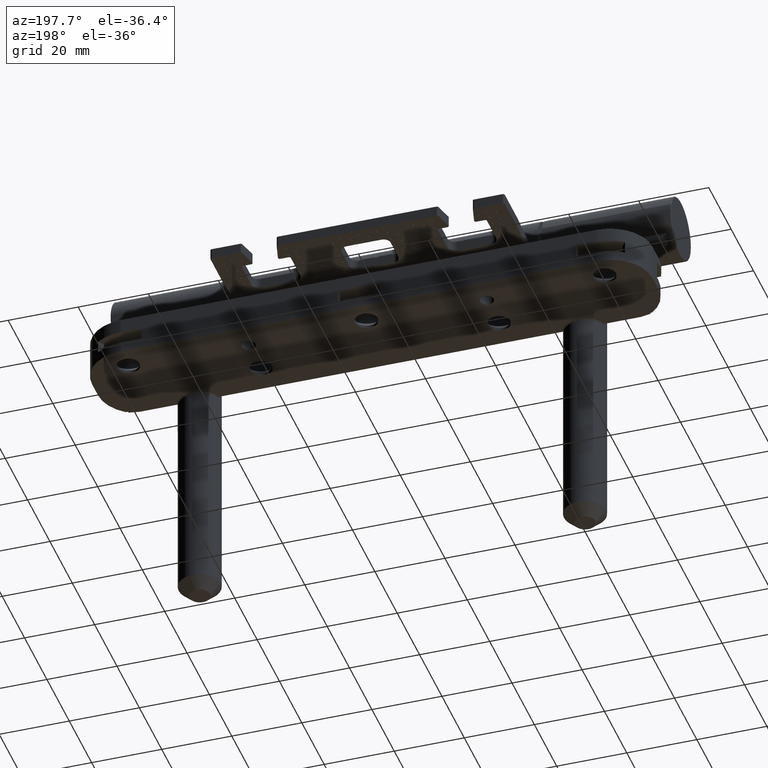
[diagram: clean part render]
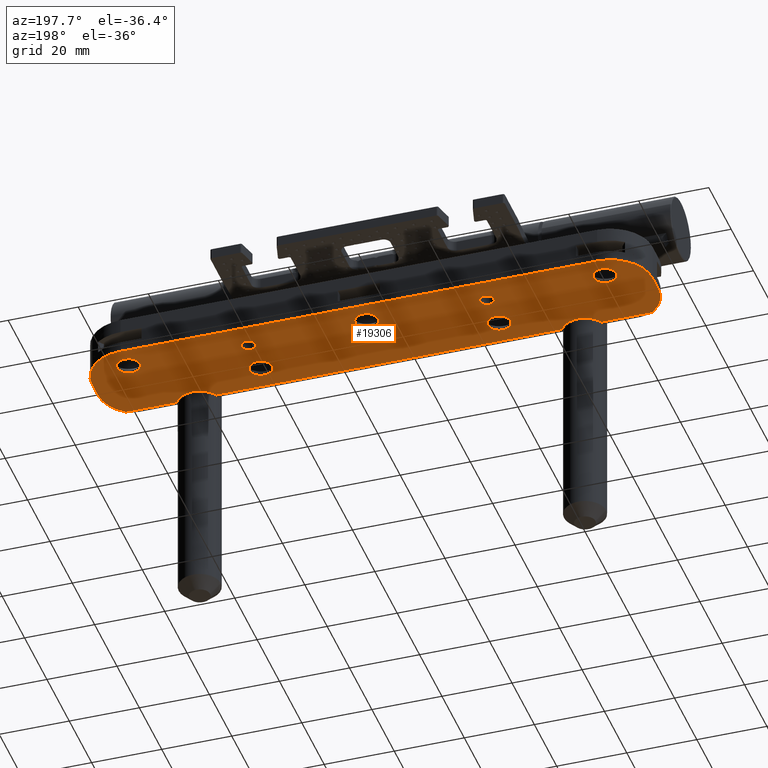
[diagram: same view with one face highlighted and labeled with its STEP entity id]
A machine part, auxiliary view. The second image highlights one B-rep face of the part: STEP entity #19306.
In plain terms, the highlighted planar face has unit normal (-0, 0, -1).
Its self-contained STEP definition (entity closure, byte-faithful):
#16 = CIRCLE ( 'NONE', #24866, 11.99999999999999645 ) ;
#91 = DIRECTION ( 'NONE',  ( 1.000000000000000000, 0.000000000000000000, 0.000000000000000000 ) ) ;
#528 = AXIS2_PLACEMENT_3D ( 'NONE', #54129, #11347, #28052 ) ;
#893 = DIRECTION ( 'NONE',  ( -6.661338147750895855E-16, -1.000000000000000000, 4.190823558986625216E-31 ) ) ;
#1560 = EDGE_CURVE ( 'NONE', #5891, #54876, #36880, .T. ) ;
#2489 = VERTEX_POINT ( 'NONE', #34988 ) ;
#2493 = DIRECTION ( 'NONE',  ( 1.000000000000000000, 6.661338147750896841E-16, -1.224646799147351975E-16 ) ) ;
#3040 = AXIS2_PLACEMENT_3D ( 'NONE', #30078, #18114, #91 ) ;
#3041 = CARTESIAN_POINT ( 'NONE',  ( -7.000000000000040856, -68.00000000000000000, 0.000000000000000000 ) ) ;
#3295 = CARTESIAN_POINT ( 'NONE',  ( -6.999999999999999112, 0.000000000000000000, 0.000000000000000000 ) ) ;
#3655 = FACE_BOUND ( 'NONE', #38277, .T. ) ;
#4010 = ORIENTED_EDGE ( 'NONE', *, *, #30425, .T. ) ;
#4615 = ORIENTED_EDGE ( 'NONE', *, *, #27919, .T. ) ;
#4652 = ORIENTED_EDGE ( 'NONE', *, *, #26941, .T. ) ;
#4987 = DIRECTION ( 'NONE',  ( 9.860761315262651947E-32, -4.221638438096822742E-31, 1.000000000000000000 ) ) ;
#5378 = AXIS2_PLACEMENT_3D ( 'NONE', #35793, #4987, #26920 ) ;
#5382 = EDGE_CURVE ( 'NONE', #42048, #10836, #11360, .T. ) ;
#5447 = VERTEX_POINT ( 'NONE', #50522 ) ;
#5800 = AXIS2_PLACEMENT_3D ( 'NONE', #10701, #7377, #28216 ) ;
#5891 = VERTEX_POINT ( 'NONE', #24102 ) ;
#6208 = CARTESIAN_POINT ( 'NONE',  ( -10.00000000000000355, -34.00000000000000000, 1.972152263052530389E-31 ) ) ;
#6307 = CARTESIAN_POINT ( 'NONE',  ( -26.99899999999990641, 80.00000000000000000, 3.469446951953614189E-15 ) ) ;
#6582 = LINE ( 'NONE', #23534, #28075 ) ;
#6719 = VERTEX_POINT ( 'NONE', #13852 ) ;
#6832 = DIRECTION ( 'NONE',  ( -1.000000000000000000, -1.156482317317872119E-15, 1.224646799147351975E-16 ) ) ;
#6857 = EDGE_CURVE ( 'NONE', #46029, #19776, #16, .T. ) ;
#7067 = CIRCLE ( 'NONE', #45205, 11.99999999999999645 ) ;
#7234 = VECTOR ( 'NONE', #12218, 1000.000000000000000 ) ;
#7377 = DIRECTION ( 'NONE',  ( 9.860761315262651947E-32, -4.221638438096822742E-31, 1.000000000000000000 ) ) ;
#7846 = VERTEX_POINT ( 'NONE', #32847 ) ;
#7985 = DIRECTION ( 'NONE',  ( -1.000000000000000000, -2.312964634635743450E-15, 1.224646799147351728E-16 ) ) ;
#8024 = AXIS2_PLACEMENT_3D ( 'NONE', #14511, #22304, #18934 ) ;
#8668 = EDGE_CURVE ( 'NONE', #34007, #14679, #10754, .T. ) ;
#9161 = CARTESIAN_POINT ( 'NONE',  ( -11.99999999999994849, 80.00000000000001421, 0.000000000000000000 ) ) ;
#9961 = CARTESIAN_POINT ( 'NONE',  ( -8.000000000000003553, -34.00000000000000000, 0.000000000000000000 ) ) ;
#10220 = CIRCLE ( 'NONE', #22661, 1.999999999999999112 ) ;
#10654 = AXIS2_PLACEMENT_3D ( 'NONE', #46100, #29425, #38026 ) ;
#10694 = DIRECTION ( 'NONE',  ( 1.000000000000000000, 0.000000000000000000, 0.000000000000000000 ) ) ;
#10701 = CARTESIAN_POINT ( 'NONE',  ( -18.99999999999995381, 34.00000000000000000, 0.000000000000000000 ) ) ;
#10754 = CIRCLE ( 'NONE', #21411, 11.99999999999999289 ) ;
#10836 = VERTEX_POINT ( 'NONE', #9161 ) ;
#11347 = DIRECTION ( 'NONE',  ( 9.860761315262651947E-32, -4.221638438096822742E-31, 1.000000000000000000 ) ) ;
#11360 = LINE ( 'NONE', #28065, #18509 ) ;
#11580 = DIRECTION ( 'NONE',  ( 1.224646799147353947E-16, -3.374229262566438528E-31, 1.000000000000000000 ) ) ;
#11623 = VERTEX_POINT ( 'NONE', #27886 ) ;
#11653 = DIRECTION ( 'NONE',  ( 9.860761315262651947E-32, -4.221638438096822742E-31, 1.000000000000000000 ) ) ;
#11894 = VERTEX_POINT ( 'NONE', #53554 ) ;
#11973 = FACE_BOUND ( 'NONE', #30640, .T. ) ;
#12218 = DIRECTION ( 'NONE',  ( 6.661338147750895855E-16, 1.000000000000000000, -4.190823558986625216E-31 ) ) ;
#12348 = CARTESIAN_POINT ( 'NONE',  ( -6.000000000000004441, -34.00000000000000000, 1.972152263052529514E-31 ) ) ;
#12916 = CIRCLE ( 'NONE', #528, 1.999999999999999112 ) ;
#13511 = CARTESIAN_POINT ( 'NONE',  ( -26.99900000000003075, -74.50000000000001421, 3.469446951953614189E-15 ) ) ;
#13657 = LINE ( 'NONE', #47821, #47130 ) ;
#13852 = CARTESIAN_POINT ( 'NONE',  ( -3.749999999999938272, 68.00000000000000000, -1.734723475976807094E-14 ) ) ;
#13918 = ORIENTED_EDGE ( 'NONE', *, *, #6857, .F. ) ;
#14256 = CIRCLE ( 'NONE', #5378, 3.249999999999999556 ) ;
#14359 = LINE ( 'NONE', #6307, #43764 ) ;
#14511 = CARTESIAN_POINT ( 'NONE',  ( -7.000000000000040856, -68.00000000000000000, 0.000000000000000000 ) ) ;
#14619 = VERTEX_POINT ( 'NONE', #15202 ) ;
#14679 = VERTEX_POINT ( 'NONE', #18804 ) ;
#14991 = ORIENTED_EDGE ( 'NONE', *, *, #28636, .T. ) ;
#15148 = CARTESIAN_POINT ( 'NONE',  ( -7.999999999999958256, 34.00000000000000000, -1.734723475976807094E-14 ) ) ;
#15202 = CARTESIAN_POINT ( 'NONE',  ( -3.750000000000042188, -68.00000000000000000, 3.204747427460360459E-31 ) ) ;
#15461 = AXIS2_PLACEMENT_3D ( 'NONE', #40220, #45207, #19088 ) ;
#15464 = DIRECTION ( 'NONE',  ( -1.000000000000000000, -1.156482317317871725E-15, 1.224646799147351728E-16 ) ) ;
#15712 = CIRCLE ( 'NONE', #24617, 1.999999999999999112 ) ;
#15810 = DIRECTION ( 'NONE',  ( 9.860761315262651947E-32, -4.221638438096822742E-31, 1.000000000000000000 ) ) ;
#16099 = DIRECTION ( 'NONE',  ( 9.860761315262651947E-32, -4.221638438096822742E-31, 1.000000000000000000 ) ) ;
#16187 = EDGE_CURVE ( 'NONE', #24594, #21484, #10220, .T. ) ;
#16896 = ORIENTED_EDGE ( 'NONE', *, *, #47046, .T. ) ;
#17036 = ORIENTED_EDGE ( 'NONE', *, *, #34119, .T. ) ;
#17248 = ORIENTED_EDGE ( 'NONE', *, *, #29407, .T. ) ;
#17568 = ORIENTED_EDGE ( 'NONE', *, *, #1560, .T. ) ;
#17691 = DIRECTION ( 'NONE',  ( 1.000000000000000000, 0.000000000000000000, 9.860761315262647568E-32 ) ) ;
#17920 = DIRECTION ( 'NONE',  ( 9.860761315262651947E-32, -4.221638438096822742E-31, 1.000000000000000000 ) ) ;
#17955 = ORIENTED_EDGE ( 'NONE', *, *, #41127, .T. ) ;
#17958 = CARTESIAN_POINT ( 'NONE',  ( -18.99999999999998934, -34.00000000000000000, 0.000000000000000000 ) ) ;
#18114 = DIRECTION ( 'NONE',  ( 9.860761315262651947E-32, -4.221638438096822742E-31, 1.000000000000000000 ) ) ;
#18157 = CARTESIAN_POINT ( 'NONE',  ( -10.24999999999999822, -1.766924688296161684E-15, 3.204747427460354329E-31 ) ) ;
#18473 = ORIENTED_EDGE ( 'NONE', *, *, #52033, .T. ) ;
#18509 = VECTOR ( 'NONE', #2493, 1000.000000000000000 ) ;
#18713 = ORIENTED_EDGE ( 'NONE', *, *, #44593, .T. ) ;
#18804 = CARTESIAN_POINT ( 'NONE',  ( -4.163336342344337027E-14, -68.00000000000000000, 3.469446951953614189E-15 ) ) ;
#18934 = DIRECTION ( 'NONE',  ( 1.000000000000000000, 0.000000000000000000, 9.860761315262651947E-32 ) ) ;
#19088 = DIRECTION ( 'NONE',  ( -1.000000000000000000, -1.156482317317872119E-15, 1.224646799147351975E-16 ) ) ;
#19306 = ADVANCED_FACE ( 'NONE', ( #33101, #11973, #46165, #25067, #28953, #3655, #20592, #41996 ), #20873, .T. ) ;
#19361 = ORIENTED_EDGE ( 'NONE', *, *, #52343, .T. ) ;
#19776 = VERTEX_POINT ( 'NONE', #48271 ) ;
#20592 = FACE_BOUND ( 'NONE', #42997, .T. ) ;
#20865 = CIRCLE ( 'NONE', #5800, 3.249999999999999556 ) ;
#20873 = PLANE ( 'NONE',  #29159 ) ;
#21300 = ORIENTED_EDGE ( 'NONE', *, *, #16187, .T. ) ;
#21411 = AXIS2_PLACEMENT_3D ( 'NONE', #35438, #27956, #6832 ) ;
#21484 = VERTEX_POINT ( 'NONE', #6208 ) ;
#21947 = DIRECTION ( 'NONE',  ( 9.860761315262651947E-32, -4.221638438096822742E-31, 1.000000000000000000 ) ) ;
#22212 = CIRCLE ( 'NONE', #10654, 3.249999999999998668 ) ;
#22304 = DIRECTION ( 'NONE',  ( 9.860761315262651947E-32, -4.221638438096822742E-31, 1.000000000000000000 ) ) ;
#22340 = ORIENTED_EDGE ( 'NONE', *, *, #34772, .T. ) ;
#22661 = AXIS2_PLACEMENT_3D ( 'NONE', #9961, #21947, #43869 ) ;
#23243 = EDGE_CURVE ( 'NONE', #5447, #7846, #20865, .T. ) ;
#23534 = CARTESIAN_POINT ( 'NONE',  ( -26.99899999999996680, -4.163336342344337027E-14, 3.469446951953614189E-15 ) ) ;
#23755 = CARTESIAN_POINT ( 'NONE',  ( -5.999999999999959144, 34.00000000000000000, -1.734723475976807094E-14 ) ) ;
#23879 = CIRCLE ( 'NONE', #34476, 3.249999999999998668 ) ;
#24102 = CARTESIAN_POINT ( 'NONE',  ( -22.24999999999998934, -34.00000000000000000, 8.666684749742550829E-31 ) ) ;
#24594 = VERTEX_POINT ( 'NONE', #12348 ) ;
#24617 = AXIS2_PLACEMENT_3D ( 'NONE', #15148, #45696, #10694 ) ;
#24802 = VECTOR ( 'NONE', #42680, 1000.000000000000000 ) ;
#24866 = AXIS2_PLACEMENT_3D ( 'NONE', #36063, #11580, #7985 ) ;
#24893 = CIRCLE ( 'NONE', #8024, 3.249999999999998668 ) ;
#25067 = FACE_OUTER_BOUND ( 'NONE', #43112, .T. ) ;
#25753 = LINE ( 'NONE', #34064, #24802 ) ;
#25779 = DIRECTION ( 'NONE',  ( 9.860761315262651947E-32, -4.221638438096822742E-31, 1.000000000000000000 ) ) ;
#26159 = CARTESIAN_POINT ( 'NONE',  ( 6.245004513516505540E-14, 80.00000000000000000, 0.000000000000000000 ) ) ;
#26585 = CARTESIAN_POINT ( 'NONE',  ( -17.35676528651905315, 80.00000000000001421, 0.000000000000000000 ) ) ;
#26727 = EDGE_CURVE ( 'NONE', #32917, #6719, #29657, .T. ) ;
#26920 = DIRECTION ( 'NONE',  ( 1.000000000000000000, 0.000000000000000000, 9.860761315262647568E-32 ) ) ;
#26941 = EDGE_CURVE ( 'NONE', #6719, #32917, #53633, .T. ) ;
#27132 = EDGE_LOOP ( 'NONE', ( #49968, #17568 ) ) ;
#27275 = CARTESIAN_POINT ( 'NONE',  ( -9.999999999999959144, 34.00000000000000000, -1.734723475976807094E-14 ) ) ;
#27886 = CARTESIAN_POINT ( 'NONE',  ( 6.245004513516505540E-14, 68.00000000000000000, 0.000000000000000000 ) ) ;
#27919 = EDGE_CURVE ( 'NONE', #46029, #42171, #6582, .T. ) ;
#27956 = DIRECTION ( 'NONE',  ( 1.224646799147353947E-16, -3.374229262566438528E-31, 1.000000000000000000 ) ) ;
#28052 = DIRECTION ( 'NONE',  ( 1.000000000000000000, 0.000000000000000000, 9.860761315262651947E-32 ) ) ;
#28065 = CARTESIAN_POINT ( 'NONE',  ( 6.245004513516505540E-14, 80.00000000000000000, 0.000000000000000000 ) ) ;
#28066 = DIRECTION ( 'NONE',  ( 1.000000000000000000, 0.000000000000000000, 9.860761315262651947E-32 ) ) ;
#28075 = VECTOR ( 'NONE', #40462, 1000.000000000000000 ) ;
#28216 = DIRECTION ( 'NONE',  ( 1.000000000000000000, 0.000000000000000000, 9.860761315262647568E-32 ) ) ;
#28636 = EDGE_CURVE ( 'NONE', #21484, #24594, #12916, .T. ) ;
#28876 = DIRECTION ( 'NONE',  ( 1.000000000000000000, 6.661338147750895855E-16, 9.860761315262651947E-32 ) ) ;
#28953 = FACE_BOUND ( 'NONE', #33007, .T. ) ;
#29159 = AXIS2_PLACEMENT_3D ( 'NONE', #26159, #43624, #51674 ) ;
#29407 = EDGE_CURVE ( 'NONE', #29607, #52183, #41365, .T. ) ;
#29425 = DIRECTION ( 'NONE',  ( 9.860761315262651947E-32, -4.221638438096822742E-31, 1.000000000000000000 ) ) ;
#29607 = VERTEX_POINT ( 'NONE', #23755 ) ;
#29657 = CIRCLE ( 'NONE', #3040, 3.249999999999998668 ) ;
#30078 = CARTESIAN_POINT ( 'NONE',  ( -6.999999999999936939, 68.00000000000000000, -1.734723475976807094E-14 ) ) ;
#30425 = EDGE_CURVE ( 'NONE', #52183, #29607, #15712, .T. ) ;
#30640 = EDGE_LOOP ( 'NONE', ( #45535, #34033 ) ) ;
#31270 = EDGE_CURVE ( 'NONE', #7846, #5447, #43273, .T. ) ;
#31683 = CIRCLE ( 'NONE', #42318, 3.249999999999998668 ) ;
#32396 = CARTESIAN_POINT ( 'NONE',  ( -17.35676528651907446, 68.00000000000001421, 0.000000000000000000 ) ) ;
#32806 = DIRECTION ( 'NONE',  ( 1.000000000000000000, 0.000000000000000000, 0.000000000000000000 ) ) ;
#32847 = CARTESIAN_POINT ( 'NONE',  ( -22.24999999999995381, 34.00000000000000000, 8.666684749742571848E-31 ) ) ;
#32874 = ORIENTED_EDGE ( 'NONE', *, *, #47589, .F. ) ;
#32917 = VERTEX_POINT ( 'NONE', #52379 ) ;
#33007 = EDGE_LOOP ( 'NONE', ( #21300, #14991 ) ) ;
#33071 = ORIENTED_EDGE ( 'NONE', *, *, #36425, .T. ) ;
#33101 = FACE_BOUND ( 'NONE', #50937, .T. ) ;
#34007 = VERTEX_POINT ( 'NONE', #50160 ) ;
#34033 = ORIENTED_EDGE ( 'NONE', *, *, #31270, .T. ) ;
#34064 = CARTESIAN_POINT ( 'NONE',  ( -4.163336342344337027E-14, -80.00000000000001421, 0.000000000000000000 ) ) ;
#34119 = EDGE_CURVE ( 'NONE', #35796, #42048, #7067, .T. ) ;
#34143 = CARTESIAN_POINT ( 'NONE',  ( -18.99999999999995381, 34.00000000000000000, 0.000000000000000000 ) ) ;
#34476 = AXIS2_PLACEMENT_3D ( 'NONE', #3041, #16099, #28066 ) ;
#34772 = EDGE_CURVE ( 'NONE', #2489, #14619, #24893, .T. ) ;
#34988 = CARTESIAN_POINT ( 'NONE',  ( -10.25000000000004086, -68.00000000000000000, 3.204747427460361773E-31 ) ) ;
#35136 = AXIS2_PLACEMENT_3D ( 'NONE', #43214, #17920, #35143 ) ;
#35143 = DIRECTION ( 'NONE',  ( 1.000000000000000000, 0.000000000000000000, 0.000000000000000000 ) ) ;
#35204 = CARTESIAN_POINT ( 'NONE',  ( -15.74999999999998934, -34.00000000000000000, 3.204747427460360022E-31 ) ) ;
#35438 = CARTESIAN_POINT ( 'NONE',  ( -12.00000000000003553, -67.99999999999997158, 3.469446951953614189E-15 ) ) ;
#35618 = CARTESIAN_POINT ( 'NONE',  ( -26.99899999999992417, 75.14334023620217806, 3.469446951953614189E-15 ) ) ;
#35793 = CARTESIAN_POINT ( 'NONE',  ( -18.99999999999998934, -34.00000000000000000, 0.000000000000000000 ) ) ;
#35796 = VERTEX_POINT ( 'NONE', #35618 ) ;
#36063 = CARTESIAN_POINT ( 'NONE',  ( -17.35676528651918105, -67.99999999999997158, 0.000000000000000000 ) ) ;
#36425 = EDGE_CURVE ( 'NONE', #40422, #50795, #22212, .T. ) ;
#36880 = CIRCLE ( 'NONE', #51076, 3.249999999999999556 ) ;
#37246 = CARTESIAN_POINT ( 'NONE',  ( -6.999999999999936939, 68.00000000000000000, -1.734723475976807094E-14 ) ) ;
#38026 = DIRECTION ( 'NONE',  ( 1.000000000000000000, 6.661338147750895855E-16, 9.860761315262651947E-32 ) ) ;
#38277 = EDGE_LOOP ( 'NONE', ( #17248, #4010 ) ) ;
#40220 = CARTESIAN_POINT ( 'NONE',  ( -11.99999999999993072, 68.00000000000001421, 0.000000000000000000 ) ) ;
#40422 = VERTEX_POINT ( 'NONE', #43729 ) ;
#40462 = DIRECTION ( 'NONE',  ( 6.661338147750895855E-16, 1.000000000000000000, -4.190823558986625216E-31 ) ) ;
#41127 = EDGE_CURVE ( 'NONE', #10836, #11623, #44736, .T. ) ;
#41365 = CIRCLE ( 'NONE', #35136, 1.999999999999999112 ) ;
#41996 = FACE_BOUND ( 'NONE', #27132, .T. ) ;
#42048 = VERTEX_POINT ( 'NONE', #26585 ) ;
#42171 = VERTEX_POINT ( 'NONE', #13511 ) ;
#42318 = AXIS2_PLACEMENT_3D ( 'NONE', #3295, #15810, #28876 ) ;
#42680 = DIRECTION ( 'NONE',  ( 1.000000000000000000, 6.661338147750896841E-16, -1.224646799147351975E-16 ) ) ;
#42890 = ORIENTED_EDGE ( 'NONE', *, *, #5382, .T. ) ;
#42997 = EDGE_LOOP ( 'NONE', ( #16896, #22340 ) ) ;
#43112 = EDGE_LOOP ( 'NONE', ( #13918, #4615, #54894, #19361, #17036, #42890, #17955, #18473, #53297, #32874 ) ) ;
#43214 = CARTESIAN_POINT ( 'NONE',  ( -7.999999999999958256, 34.00000000000000000, -1.734723475976807094E-14 ) ) ;
#43273 = CIRCLE ( 'NONE', #50360, 3.249999999999999556 ) ;
#43624 = DIRECTION ( 'NONE',  ( -1.224646799147351975E-16, 3.374229262566441156E-31, -1.000000000000000000 ) ) ;
#43729 = CARTESIAN_POINT ( 'NONE',  ( -3.750000000000000888, 2.164934898019040265E-15, 3.204747427460360459E-31 ) ) ;
#43764 = VECTOR ( 'NONE', #48800, 1000.000000000000000 ) ;
#43869 = DIRECTION ( 'NONE',  ( 1.000000000000000000, 0.000000000000000000, 9.860761315262651947E-32 ) ) ;
#44593 = EDGE_CURVE ( 'NONE', #50795, #40422, #31683, .T. ) ;
#44736 = CIRCLE ( 'NONE', #15461, 11.99999999999999289 ) ;
#45205 = AXIS2_PLACEMENT_3D ( 'NONE', #32396, #53498, #15464 ) ;
#45207 = DIRECTION ( 'NONE',  ( -1.224646799147353947E-16, 3.374229262566438528E-31, -1.000000000000000000 ) ) ;
#45535 = ORIENTED_EDGE ( 'NONE', *, *, #23243, .T. ) ;
#45565 = DIRECTION ( 'NONE',  ( 1.000000000000000000, 0.000000000000000000, 9.860761315262647568E-32 ) ) ;
#45574 = LINE ( 'NONE', #54169, #7234 ) ;
#45696 = DIRECTION ( 'NONE',  ( 9.860761315262651947E-32, -4.221638438096822742E-31, 1.000000000000000000 ) ) ;
#46029 = VERTEX_POINT ( 'NONE', #47517 ) ;
#46100 = CARTESIAN_POINT ( 'NONE',  ( -6.999999999999999112, 0.000000000000000000, 0.000000000000000000 ) ) ;
#46165 = FACE_BOUND ( 'NONE', #49775, .T. ) ;
#47046 = EDGE_CURVE ( 'NONE', #14619, #2489, #23879, .T. ) ;
#47130 = VECTOR ( 'NONE', #893, 1000.000000000000000 ) ;
#47517 = CARTESIAN_POINT ( 'NONE',  ( -26.99900000000003075, -75.14334023620217806, 3.469446951953614189E-15 ) ) ;
#47589 = EDGE_CURVE ( 'NONE', #19776, #34007, #25753, .T. ) ;
#47821 = CARTESIAN_POINT ( 'NONE',  ( 6.245004513516505540E-14, 80.00000000000000000, 0.000000000000000000 ) ) ;
#48271 = CARTESIAN_POINT ( 'NONE',  ( -17.35676528651917749, -79.99999999999998579, 3.469446951953614189E-15 ) ) ;
#48800 = DIRECTION ( 'NONE',  ( -6.661338147750895855E-16, -1.000000000000000000, 4.190823558986625216E-31 ) ) ;
#49212 = AXIS2_PLACEMENT_3D ( 'NONE', #37246, #54185, #32806 ) ;
#49775 = EDGE_LOOP ( 'NONE', ( #33071, #18713 ) ) ;
#49968 = ORIENTED_EDGE ( 'NONE', *, *, #51177, .T. ) ;
#50160 = CARTESIAN_POINT ( 'NONE',  ( -12.00000000000003553, -79.99999999999998579, -1.734723475976807094E-14 ) ) ;
#50360 = AXIS2_PLACEMENT_3D ( 'NONE', #34143, #11653, #45565 ) ;
#50522 = CARTESIAN_POINT ( 'NONE',  ( -15.74999999999995559, 34.00000000000000000, 3.204747427460360022E-31 ) ) ;
#50795 = VERTEX_POINT ( 'NONE', #18157 ) ;
#50937 = EDGE_LOOP ( 'NONE', ( #4652, #52922 ) ) ;
#51076 = AXIS2_PLACEMENT_3D ( 'NONE', #17958, #25779, #17691 ) ;
#51177 = EDGE_CURVE ( 'NONE', #54876, #5891, #14256, .T. ) ;
#51674 = DIRECTION ( 'NONE',  ( -1.000000000000000000, -6.661338147750896841E-16, 1.224646799147351975E-16 ) ) ;
#52033 = EDGE_CURVE ( 'NONE', #11623, #14679, #13657, .T. ) ;
#52183 = VERTEX_POINT ( 'NONE', #27275 ) ;
#52343 = EDGE_CURVE ( 'NONE', #11894, #35796, #45574, .T. ) ;
#52379 = CARTESIAN_POINT ( 'NONE',  ( -10.24999999999993605, 68.00000000000000000, -1.734723475976807094E-14 ) ) ;
#52922 = ORIENTED_EDGE ( 'NONE', *, *, #26727, .T. ) ;
#53297 = ORIENTED_EDGE ( 'NONE', *, *, #8668, .F. ) ;
#53498 = DIRECTION ( 'NONE',  ( -1.224646799147353947E-16, 3.374229262566438528E-31, -1.000000000000000000 ) ) ;
#53554 = CARTESIAN_POINT ( 'NONE',  ( -26.99899999999992417, 74.50000000000001421, 3.469446951953614189E-15 ) ) ;
#53633 = CIRCLE ( 'NONE', #49212, 3.249999999999998668 ) ;
#54129 = CARTESIAN_POINT ( 'NONE',  ( -8.000000000000003553, -34.00000000000000000, 0.000000000000000000 ) ) ;
#54169 = CARTESIAN_POINT ( 'NONE',  ( -26.99899999999996680, -4.163336342344337027E-14, 3.469446951953614189E-15 ) ) ;
#54173 = EDGE_CURVE ( 'NONE', #11894, #42171, #14359, .T. ) ;
#54185 = DIRECTION ( 'NONE',  ( 9.860761315262651947E-32, -4.221638438096822742E-31, 1.000000000000000000 ) ) ;
#54876 = VERTEX_POINT ( 'NONE', #35204 ) ;
#54894 = ORIENTED_EDGE ( 'NONE', *, *, #54173, .F. ) ;